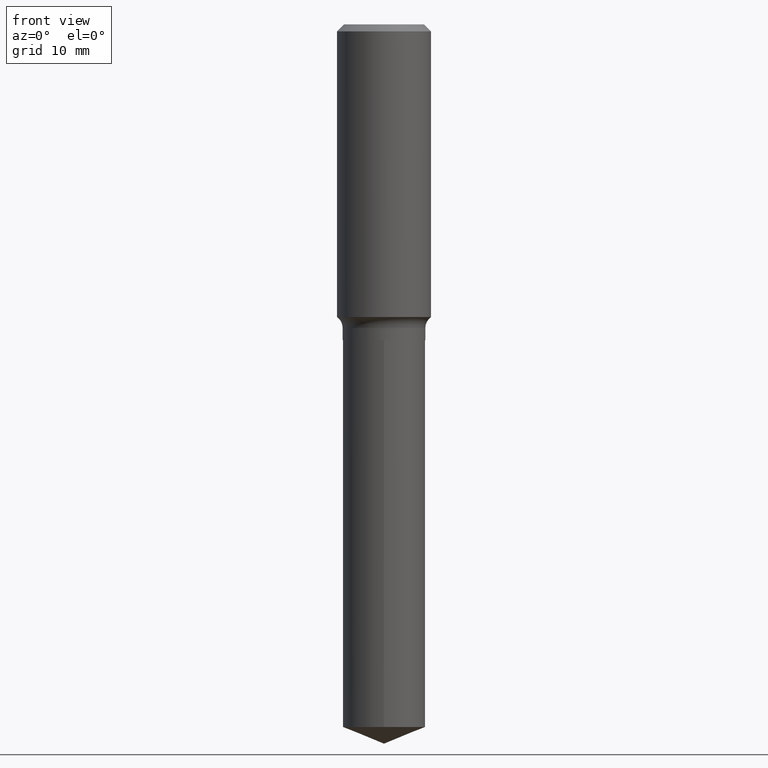
[diagram: clean part render]
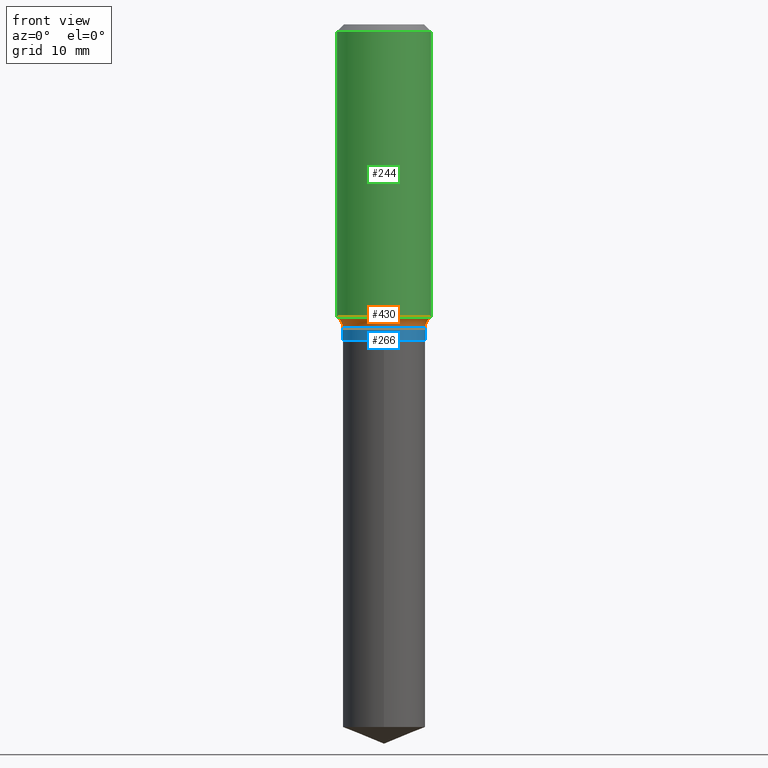
[diagram: same view with three faces highlighted in distinct colors, each labeled with its STEP entity id]
A machine part, front view with three faces highlighted in distinct colors.
Their STEP definitions:

[orange] entity #430 — the highlighted toroidal blend (fillet) surface has major radius 8.1331 mm and minor (blend) radius 1.9812 mm.
#6 = CARTESIAN_POINT ( 'NONE',  ( 0.2756000000000001782, -7.907887728136033318E-15, -1.713709063141723332 ) ) ;
#10 = CIRCLE ( 'NONE', #345, 0.2756000000000001782 ) ;
#18 = DIRECTION ( 'NONE',  ( 1.000000000000000000, -6.982962677686274599E-15, 0.000000000000000000 ) ) ;
#20 = EDGE_LOOP ( 'NONE', ( #286, #284, #102, #194 ) ) ;
#32 = VERTEX_POINT ( 'NONE', #6 ) ;
#36 = FACE_OUTER_BOUND ( 'NONE', #20, .T. ) ;
#39 = CIRCLE ( 'NONE', #56, 0.07799999999999995826 ) ;
#56 = AXIS2_PLACEMENT_3D ( 'NONE', #342, #84, #18 ) ;
#58 = TOROIDAL_SURFACE ( 'NONE', #149, 0.3201999999999999291, 0.07799999999999993050 ) ;
#63 = CARTESIAN_POINT ( 'NONE',  ( -0.3201999999999999291, -3.931648536157621988E-15, -1.777700000000000502 ) ) ;
#84 = DIRECTION ( 'NONE',  ( -6.982962677686266711E-15, -1.000000000000000000, 3.491481338843145583E-15 ) ) ;
#93 = CARTESIAN_POINT ( 'NONE',  ( -0.2421999999999999431, -4.611914346382738705E-15, -1.777700000000000502 ) ) ;
#94 = AXIS2_PLACEMENT_3D ( 'NONE', #63, #248, #183 ) ;
#102 = ORIENTED_EDGE ( 'NONE', *, *, #143, .T. ) ;
#143 = EDGE_CURVE ( 'NONE', #166, #323, #343, .T. ) ;
#149 = AXIS2_PLACEMENT_3D ( 'NONE', #173, #257, #404 ) ;
#150 = EDGE_CURVE ( 'NONE', #32, #323, #39, .T. ) ;
#166 = VERTEX_POINT ( 'NONE', #93 ) ;
#173 = CARTESIAN_POINT ( 'NONE',  ( 4.347309896755318363E-29, -6.206806376061462280E-15, -1.777700000000000502 ) ) ;
#183 = DIRECTION ( 'NONE',  ( -1.000000000000000000, 7.105427357601001859E-15, 0.000000000000000000 ) ) ;
#189 = DIRECTION ( 'NONE',  ( -2.445468806185136597E-29, 3.491481338843145583E-15, 1.000000000000000000 ) ) ;
#194 = ORIENTED_EDGE ( 'NONE', *, *, #150, .F. ) ;
#199 = DIRECTION ( 'NONE',  ( 1.000000000000000000, -6.982962677686268288E-15, 0.000000000000000000 ) ) ;
#208 = EDGE_CURVE ( 'NONE', #485, #166, #310, .T. ) ;
#248 = DIRECTION ( 'NONE',  ( 7.105427357601001859E-15, 1.000000000000000000, -3.491481338843145583E-15 ) ) ;
#251 = AXIS2_PLACEMENT_3D ( 'NONE', #465, #276, #199 ) ;
#257 = DIRECTION ( 'NONE',  ( -2.445468806185136597E-29, 3.491481338843145583E-15, 1.000000000000000000 ) ) ;
#268 = CARTESIAN_POINT ( 'NONE',  ( 0.2421999999999999431, -7.898079936597074890E-15, -1.777700000000000502 ) ) ;
#276 = DIRECTION ( 'NONE',  ( -2.445468806185136597E-29, 3.491481338843145583E-15, 1.000000000000000000 ) ) ;
#284 = ORIENTED_EDGE ( 'NONE', *, *, #208, .T. ) ;
#286 = ORIENTED_EDGE ( 'NONE', *, *, #288, .F. ) ;
#288 = EDGE_CURVE ( 'NONE', #485, #32, #10, .T. ) ;
#310 = CIRCLE ( 'NONE', #94, 0.07799999999999995826 ) ;
#323 = VERTEX_POINT ( 'NONE', #268 ) ;
#342 = CARTESIAN_POINT ( 'NONE',  ( 0.3201999999999999291, -8.442751025456604514E-15, -1.777700000000000502 ) ) ;
#343 = CIRCLE ( 'NONE', #251, 0.2421999999999999431 ) ;
#345 = AXIS2_PLACEMENT_3D ( 'NONE', #376, #189, #451 ) ;
#359 = CARTESIAN_POINT ( 'NONE',  ( -0.2756000000000001782, -4.025127434410860197E-15, -1.713709063141723332 ) ) ;
#376 = CARTESIAN_POINT ( 'NONE',  ( 4.190822056789839222E-29, -5.983383214165697575E-15, -1.713709063141723332 ) ) ;
#404 = DIRECTION ( 'NONE',  ( 1.000000000000000000, -6.982962677686267499E-15, 4.883557194083113462E-29 ) ) ;
#430 = ADVANCED_FACE ( 'NONE', ( #36 ), #58, .F. ) ;
#451 = DIRECTION ( 'NONE',  ( 1.000000000000000000, -6.982962677686265922E-15, 0.000000000000000000 ) ) ;
#465 = CARTESIAN_POINT ( 'NONE',  ( 4.347309896755318363E-29, -6.206806376061462280E-15, -1.777700000000000502 ) ) ;
#485 = VERTEX_POINT ( 'NONE', #359 ) ;

[blue] entity #266 — the highlighted cylindrical surface (partial cylindrical patch) has radius 6.1519 mm, axis along (-0, 0, 1).
#30 = DIRECTION ( 'NONE',  ( -2.445468806185136597E-29, 3.491481338843145583E-15, 1.000000000000000000 ) ) ;
#34 = DIRECTION ( 'NONE',  ( -2.445468806185136877E-29, 3.491481338843145188E-15, 1.000000000000000000 ) ) ;
#44 = AXIS2_PLACEMENT_3D ( 'NONE', #216, #30, #212 ) ;
#49 = EDGE_CURVE ( 'NONE', #348, #166, #314, .T. ) ;
#75 = VECTOR ( 'NONE', #312, 39.37007874015748143 ) ;
#85 = CIRCLE ( 'NONE', #44, 0.2421999999999999431 ) ;
#93 = CARTESIAN_POINT ( 'NONE',  ( -0.2421999999999999431, -4.611914346382738705E-15, -1.777700000000000502 ) ) ;
#95 = ORIENTED_EDGE ( 'NONE', *, *, #143, .F. ) ;
#143 = EDGE_CURVE ( 'NONE', #166, #323, #343, .T. ) ;
#166 = VERTEX_POINT ( 'NONE', #93 ) ;
#174 = FACE_OUTER_BOUND ( 'NONE', #234, .T. ) ;
#188 = CARTESIAN_POINT ( 'NONE',  ( -0.2421999999999999431, -4.611914346382738705E-15, -1.849900000000000988 ) ) ;
#192 = VECTOR ( 'NONE', #34, 39.37007874015748143 ) ;
#199 = DIRECTION ( 'NONE',  ( 1.000000000000000000, -6.982962677686268288E-15, 0.000000000000000000 ) ) ;
#210 = ORIENTED_EDGE ( 'NONE', *, *, #243, .T. ) ;
#212 = DIRECTION ( 'NONE',  ( 1.000000000000000000, -6.982962677686268288E-15, 0.000000000000000000 ) ) ;
#216 = CARTESIAN_POINT ( 'NONE',  ( 4.523872744561886834E-29, -6.458891328725938439E-15, -1.849900000000000988 ) ) ;
#234 = EDGE_LOOP ( 'NONE', ( #296, #210, #418, #95 ) ) ;
#243 = EDGE_CURVE ( 'NONE', #348, #392, #85, .T. ) ;
#245 = CARTESIAN_POINT ( 'NONE',  ( -0.2421999999999999431, 1.720934506010962246E-15, -1.191366078859737785E-29 ) ) ;
#251 = AXIS2_PLACEMENT_3D ( 'NONE', #465, #276, #199 ) ;
#258 = CARTESIAN_POINT ( 'NONE',  ( 0.000000000000000000, 0.000000000000000000, 0.000000000000000000 ) ) ;
#266 = ADVANCED_FACE ( 'NONE', ( #174 ), #322, .T. ) ;
#268 = CARTESIAN_POINT ( 'NONE',  ( 0.2421999999999999431, -7.898079936597074890E-15, -1.777700000000000502 ) ) ;
#276 = DIRECTION ( 'NONE',  ( -2.445468806185136597E-29, 3.491481338843145583E-15, 1.000000000000000000 ) ) ;
#283 = LINE ( 'NONE', #483, #192 ) ;
#296 = ORIENTED_EDGE ( 'NONE', *, *, #49, .F. ) ;
#303 = AXIS2_PLACEMENT_3D ( 'NONE', #258, #478, #406 ) ;
#312 = DIRECTION ( 'NONE',  ( -2.445468806185136877E-29, 3.491481338843145188E-15, 1.000000000000000000 ) ) ;
#314 = LINE ( 'NONE', #245, #75 ) ;
#322 = CYLINDRICAL_SURFACE ( 'NONE', #303, 0.2421999999999999431 ) ;
#323 = VERTEX_POINT ( 'NONE', #268 ) ;
#324 = CARTESIAN_POINT ( 'NONE',  ( 0.2421999999999999431, -8.150164889261552628E-15, -1.849900000000000988 ) ) ;
#343 = CIRCLE ( 'NONE', #251, 0.2421999999999999431 ) ;
#348 = VERTEX_POINT ( 'NONE', #188 ) ;
#392 = VERTEX_POINT ( 'NONE', #324 ) ;
#406 = DIRECTION ( 'NONE',  ( 1.000000000000000000, -6.982962677686266711E-15, 4.876176775795935232E-29 ) ) ;
#418 = ORIENTED_EDGE ( 'NONE', *, *, #489, .T. ) ;
#465 = CARTESIAN_POINT ( 'NONE',  ( 4.347309896755318363E-29, -6.206806376061462280E-15, -1.777700000000000502 ) ) ;
#478 = DIRECTION ( 'NONE',  ( -2.445468806185136597E-29, 3.491481338843145583E-15, 1.000000000000000000 ) ) ;
#483 = CARTESIAN_POINT ( 'NONE',  ( 0.2421999999999999431, -1.691273560535613400E-15, 1.181010015097775271E-29 ) ) ;
#489 = EDGE_CURVE ( 'NONE', #392, #323, #283, .T. ) ;

[green] entity #244 — the highlighted cylindrical surface (partial cylindrical patch) has radius 7.0002 mm, axis along (-0, 0, 1).
#2 = EDGE_CURVE ( 'NONE', #32, #242, #47, .T. ) ;
#5 = EDGE_CURVE ( 'NONE', #485, #172, #347, .T. ) ;
#6 = CARTESIAN_POINT ( 'NONE',  ( 0.2756000000000001782, -7.907887728136033318E-15, -1.713709063141723332 ) ) ;
#10 = CIRCLE ( 'NONE', #345, 0.2756000000000001782 ) ;
#15 = EDGE_CURVE ( 'NONE', #172, #242, #481, .T. ) ;
#32 = VERTEX_POINT ( 'NONE', #6 ) ;
#35 = CARTESIAN_POINT ( 'NONE',  ( 0.000000000000000000, 0.000000000000000000, 0.000000000000000000 ) ) ;
#47 = LINE ( 'NONE', #464, #115 ) ;
#50 = CARTESIAN_POINT ( 'NONE',  ( -0.2756000000000001227, 1.958255779754836984E-15, -1.355658510874252567E-29 ) ) ;
#54 = CARTESIAN_POINT ( 'NONE',  ( 0.2756000000000000116, -2.068842352518111732E-15, -0.04134000000000025155 ) ) ;
#65 = ORIENTED_EDGE ( 'NONE', *, *, #15, .F. ) ;
#72 = CARTESIAN_POINT ( 'NONE',  ( -0.2756000000000000116, -1.105604746601899798E-15, -0.04134000000000025155 ) ) ;
#79 = AXIS2_PLACEMENT_3D ( 'NONE', #35, #264, #289 ) ;
#115 = VECTOR ( 'NONE', #236, 39.37007874015748143 ) ;
#117 = DIRECTION ( 'NONE',  ( -2.445468806185136877E-29, 3.491481338843145188E-15, 1.000000000000000000 ) ) ;
#131 = CYLINDRICAL_SURFACE ( 'NONE', #79, 0.2756000000000001227 ) ;
#172 = VERTEX_POINT ( 'NONE', #72 ) ;
#189 = DIRECTION ( 'NONE',  ( -2.445468806185136597E-29, 3.491481338843145583E-15, 1.000000000000000000 ) ) ;
#214 = EDGE_LOOP ( 'NONE', ( #278, #385, #429, #65 ) ) ;
#235 = VECTOR ( 'NONE', #117, 39.37007874015748143 ) ;
#236 = DIRECTION ( 'NONE',  ( -2.445468806185136877E-29, 3.491481338843145188E-15, 1.000000000000000000 ) ) ;
#242 = VERTEX_POINT ( 'NONE', #54 ) ;
#244 = ADVANCED_FACE ( 'NONE', ( #474 ), #131, .T. ) ;
#264 = DIRECTION ( 'NONE',  ( -2.445468806185136597E-29, 3.491481338843145583E-15, 1.000000000000000000 ) ) ;
#278 = ORIENTED_EDGE ( 'NONE', *, *, #5, .F. ) ;
#288 = EDGE_CURVE ( 'NONE', #485, #32, #10, .T. ) ;
#289 = DIRECTION ( 'NONE',  ( 1.000000000000000000, -6.982962677686267499E-15, 4.876176775795935793E-29 ) ) ;
#341 = DIRECTION ( 'NONE',  ( 1.000000000000000000, -6.982962677686267499E-15, 0.000000000000000000 ) ) ;
#345 = AXIS2_PLACEMENT_3D ( 'NONE', #376, #189, #451 ) ;
#347 = LINE ( 'NONE', #50, #235 ) ;
#359 = CARTESIAN_POINT ( 'NONE',  ( -0.2756000000000001782, -4.025127434410860197E-15, -1.713709063141723332 ) ) ;
#376 = CARTESIAN_POINT ( 'NONE',  ( 4.190822056789839222E-29, -5.983383214165697575E-15, -1.713709063141723332 ) ) ;
#385 = ORIENTED_EDGE ( 'NONE', *, *, #288, .T. ) ;
#389 = AXIS2_PLACEMENT_3D ( 'NONE', #424, #423, #341 ) ;
#423 = DIRECTION ( 'NONE',  ( -2.445468806185136597E-29, 3.491481338843145583E-15, 1.000000000000000000 ) ) ;
#424 = CARTESIAN_POINT ( 'NONE',  ( 1.010956804476941697E-30, -1.443378385477765070E-16, -0.04134000000000025155 ) ) ;
#429 = ORIENTED_EDGE ( 'NONE', *, *, #2, .T. ) ;
#451 = DIRECTION ( 'NONE',  ( 1.000000000000000000, -6.982962677686265922E-15, 0.000000000000000000 ) ) ;
#464 = CARTESIAN_POINT ( 'NONE',  ( 0.2756000000000001227, -1.924504513970336137E-15, 1.343874319409360548E-29 ) ) ;
#474 = FACE_OUTER_BOUND ( 'NONE', #214, .T. ) ;
#481 = CIRCLE ( 'NONE', #389, 0.2756000000000000116 ) ;
#485 = VERTEX_POINT ( 'NONE', #359 ) ;